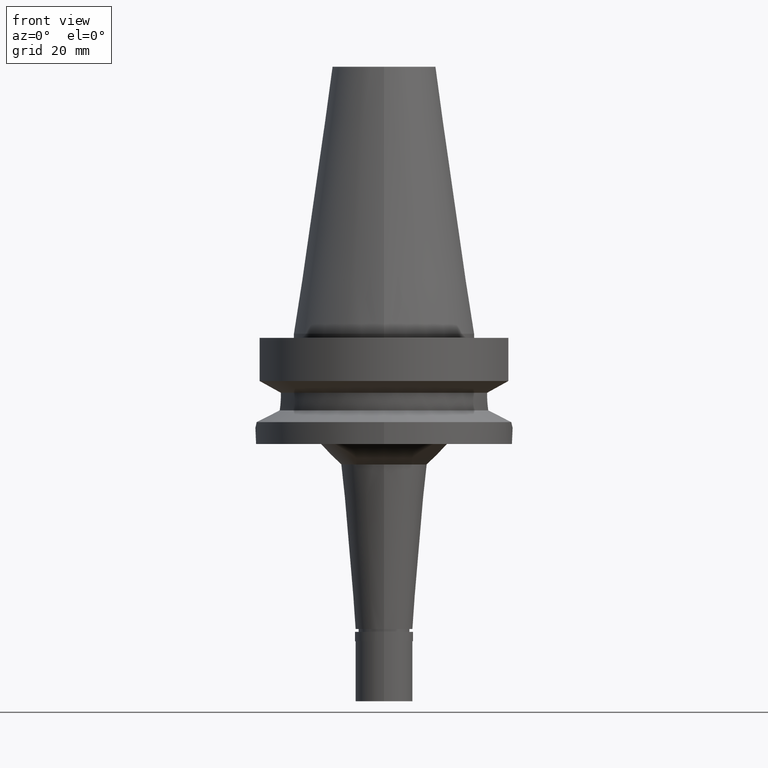
[diagram: clean part render]
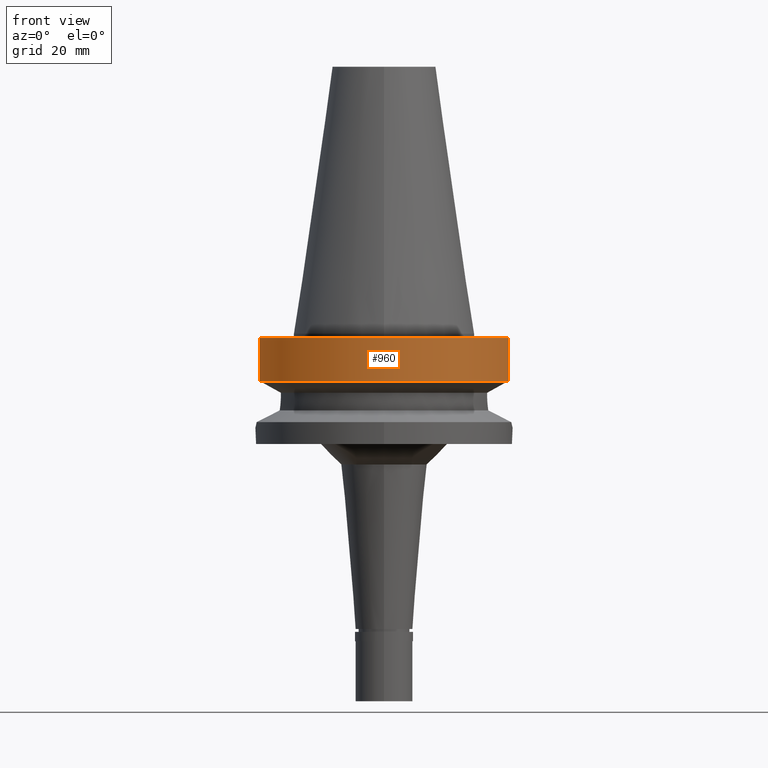
[diagram: same view with one face highlighted and labeled with its STEP entity id]
A machine part, front view. The second image highlights one B-rep face of the part: STEP entity #960.
In plain terms, the highlighted cylindrical surface (partial cylindrical patch) has radius 31.5 mm, axis along (0, 0, -1).
Its self-contained STEP definition (entity closure, byte-faithful):
#65 = DIRECTION ( 'NONE',  ( 0.0000000000000000000, 0.0000000000000000000, -1.000000000000000000 ) ) ;
#99 = CARTESIAN_POINT ( 'NONE',  ( 0.0000000000000000000, 2.118271568485000005E-14, 72.96999999999999886 ) ) ;
#177 = CARTESIAN_POINT ( 'NONE',  ( -30.45402291383999582, -8.049999277231000505, -11.56551216249999925 ) ) ;
#269 = VECTOR ( 'NONE', #2100, 1000.000000000000114 ) ;
#278 = VERTEX_POINT ( 'NONE', #1087 ) ;
#327 = FACE_OUTER_BOUND ( 'NONE', #2936, .T. ) ;
#500 = DIRECTION ( 'NONE',  ( 0.0000000000000000000, -1.000000000000000000, 0.0000000000000000000 ) ) ;
#517 = DIRECTION ( 'NONE',  ( 0.0000000000000000000, 0.0000000000000000000, 1.000000000000000000 ) ) ;
#529 = AXIS2_PLACEMENT_3D ( 'NONE', #1218, #517, #500 ) ;
#616 = CIRCLE ( 'NONE', #2598, 31.50000000000000000 ) ;
#917 = DIRECTION ( 'NONE',  ( 0.0000000000000000000, -1.000000000000000000, 0.0000000000000000000 ) ) ;
#937 = CARTESIAN_POINT ( 'NONE',  ( -30.45402272279000044, -8.050000000000000711, -1.000000000000000000 ) ) ;
#949 = EDGE_CURVE ( 'NONE', #278, #2899, #2833, .T. ) ;
#960 = ADVANCED_FACE ( 'NONE', ( #327 ), #2162, .T. ) ;
#1059 = VERTEX_POINT ( 'NONE', #2477 ) ;
#1087 = CARTESIAN_POINT ( 'NONE',  ( -30.45402291383999582, -8.049999277231000505, -11.56551216249999925 ) ) ;
#1125 = CARTESIAN_POINT ( 'NONE',  ( 30.45402272279000044, -8.050000000000000711, -1.000000000000000000 ) ) ;
#1151 = LINE ( 'NONE', #1125, #2559 ) ;
#1218 = CARTESIAN_POINT ( 'NONE',  ( 0.0000000000000000000, 1.065333950388000029E-14, -11.56550565266999975 ) ) ;
#1268 = DIRECTION ( 'NONE',  ( 0.0000000000000000000, -1.000000000000000000, 0.0000000000000000000 ) ) ;
#1301 = ORIENTED_EDGE ( 'NONE', *, *, #2668, .T. ) ;
#1455 = CARTESIAN_POINT ( 'NONE',  ( 0.0000000000000000000, 2.118271568485000005E-14, -1.000000000000000000 ) ) ;
#1555 = LINE ( 'NONE', #177, #269 ) ;
#1587 = EDGE_CURVE ( 'NONE', #1059, #2899, #1151, .T. ) ;
#1739 = VERTEX_POINT ( 'NONE', #937 ) ;
#1870 = ORIENTED_EDGE ( 'NONE', *, *, #949, .T. ) ;
#1957 = CARTESIAN_POINT ( 'NONE',  ( 30.45402272279000044, -8.049999999999000622, -11.56550565266999975 ) ) ;
#1966 = EDGE_CURVE ( 'NONE', #278, #1739, #1555, .T. ) ;
#2071 = AXIS2_PLACEMENT_3D ( 'NONE', #99, #65, #1268 ) ;
#2081 = DIRECTION ( 'NONE',  ( -1.037365253308017645E-07, -3.924459855690068671E-07, -0.9999999999999177325 ) ) ;
#2100 = DIRECTION ( 'NONE',  ( 1.808251371277990343E-08, -6.840834498293961193E-08, 0.9999999999999974465 ) ) ;
#2162 = CYLINDRICAL_SURFACE ( 'NONE', #2071, 31.50000000000000000 ) ;
#2477 = CARTESIAN_POINT ( 'NONE',  ( 30.45402272279000044, -8.050000000000000711, -1.000000000000000000 ) ) ;
#2515 = DIRECTION ( 'NONE',  ( 0.0000000000000000000, 0.0000000000000000000, -1.000000000000000000 ) ) ;
#2559 = VECTOR ( 'NONE', #2081, 999.9999999999998863 ) ;
#2598 = AXIS2_PLACEMENT_3D ( 'NONE', #1455, #2515, #917 ) ;
#2668 = EDGE_CURVE ( 'NONE', #1059, #1739, #616, .T. ) ;
#2833 = CIRCLE ( 'NONE', #529, 31.50000000000000000 ) ;
#2899 = VERTEX_POINT ( 'NONE', #1957 ) ;
#2936 = EDGE_LOOP ( 'NONE', ( #2956, #1870, #2943, #1301 ) ) ;
#2943 = ORIENTED_EDGE ( 'NONE', *, *, #1587, .F. ) ;
#2956 = ORIENTED_EDGE ( 'NONE', *, *, #1966, .F. ) ;